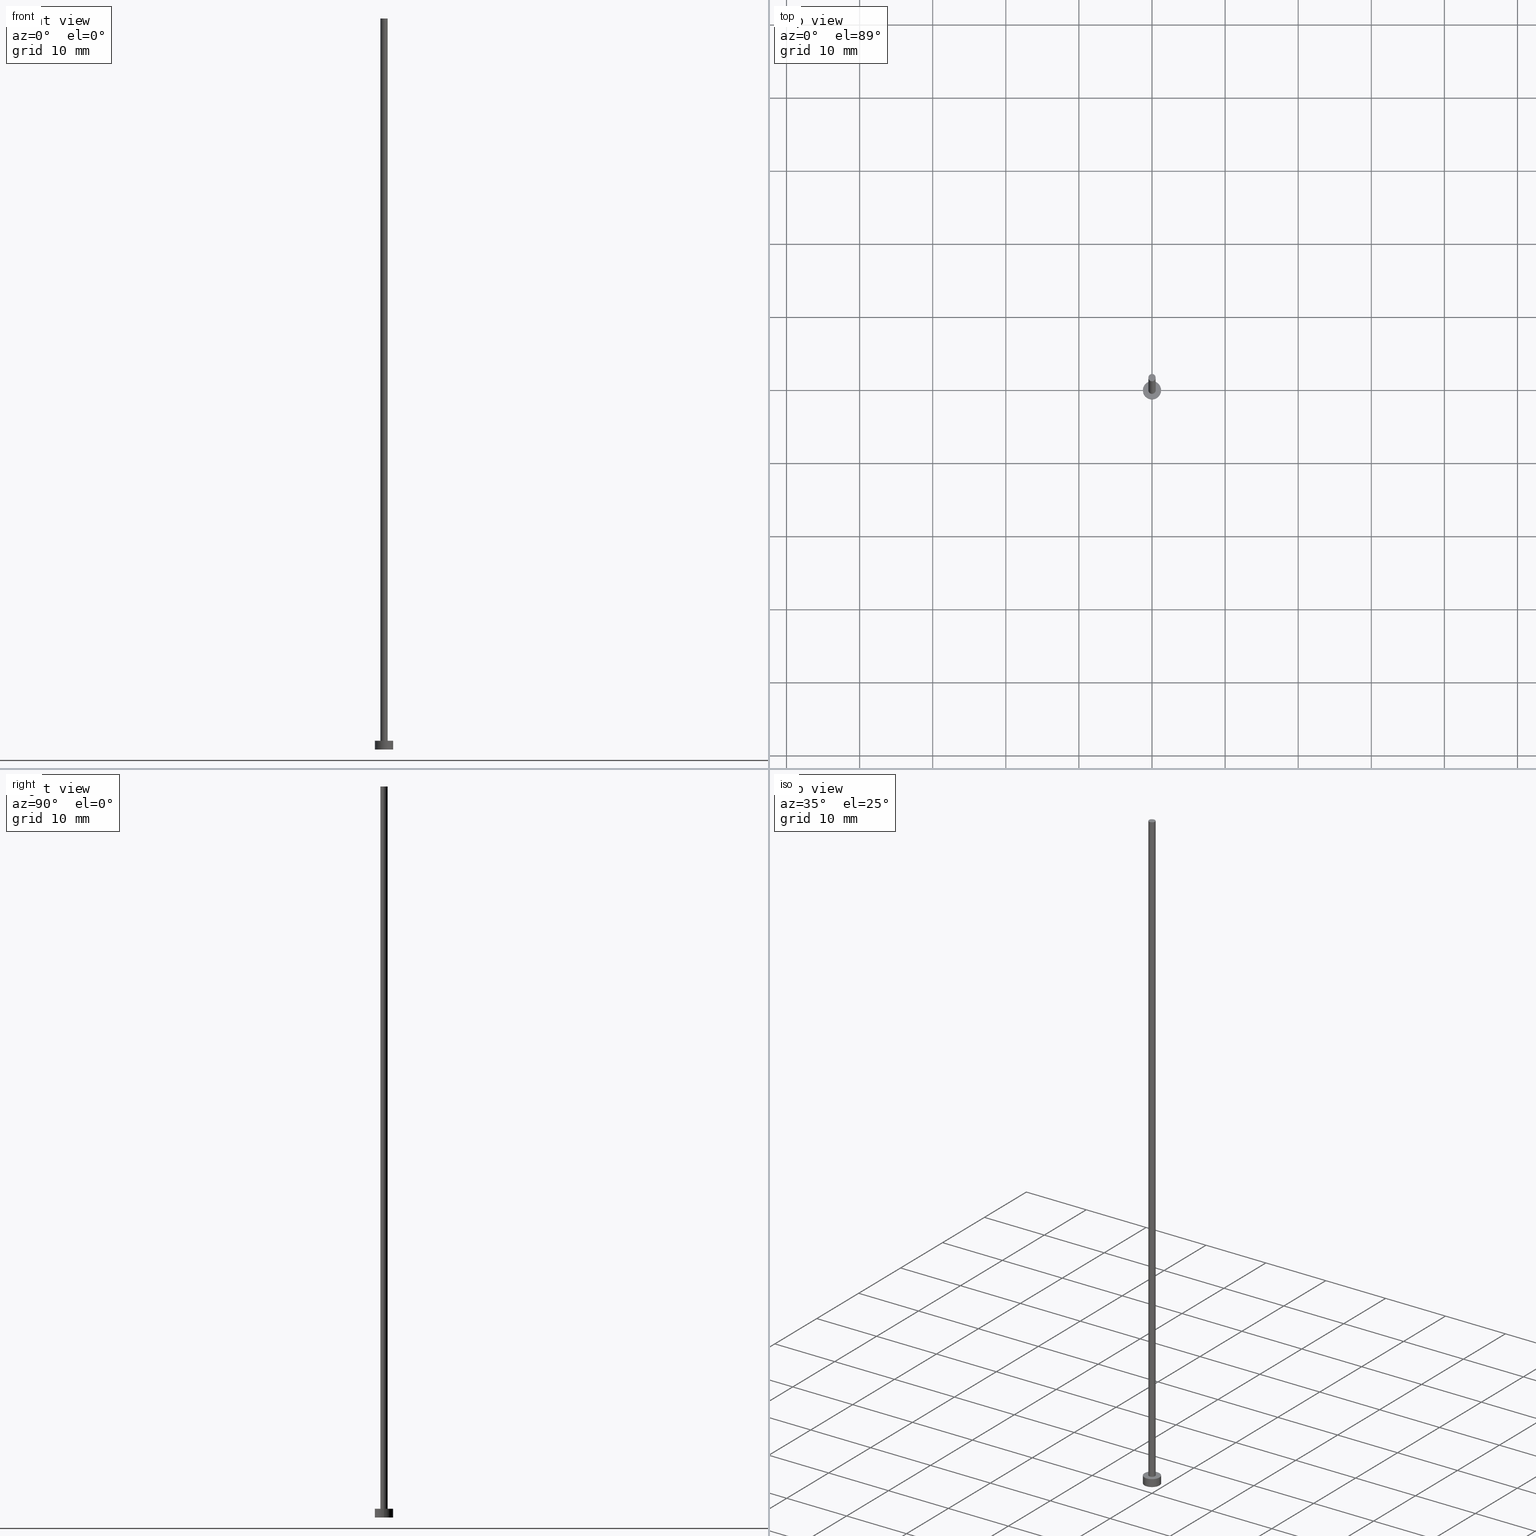
[diagram: canonical four-view strip — front | top / right | iso, engineering-drawing reading convention]
A machine part, canonical four-view strip (front | top / right | iso — engineering-drawing reading convention). The complete STEP part file that produces these views, byte-faithful:
ISO-10303-21;
HEADER;
FILE_DESCRIPTION (( 'STEP AP203' ),
    '1' );
FILE_NAME ('9a61.STEP',
    '2025-01-10T07:00:28',
    ( '' ),
    ( '' ),
    'SwSTEP 2.0',
    'SolidWorks 2019',
    '' );
FILE_SCHEMA (( 'CONFIG_CONTROL_DESIGN' ));
ENDSEC;

DATA;
#1 = EDGE_LOOP ( 'NONE', ( #94, #176, #45, #97 ) ) ;
#2 = EDGE_CURVE ( 'NONE', #156, #240, #200, .T. ) ;
#3 = VERTEX_POINT ( 'NONE', #22 ) ;
#4 = APPROVAL_DATE_TIME ( #63, #127 ) ;
#5 = EDGE_CURVE ( 'NONE', #19, #241, #30, .T. ) ;
#6 = ORIENTED_EDGE ( 'NONE', *, *, #155, .T. ) ;
#7 = CARTESIAN_POINT ( 'NONE',  ( 0.000000000000000000, 0.000000000000000000, 0.000000000000000000 ) ) ;
#8 = PLANE ( 'NONE',  #172 ) ;
#9 = AXIS2_PLACEMENT_3D ( 'NONE', #12, #166, #163 ) ;
#10 = DIRECTION ( 'NONE',  ( -1.000000000000000000, 0.000000000000000000, 0.000000000000000000 ) ) ;
#11 = CARTESIAN_POINT ( 'NONE',  ( 0.000000000000000000, 0.000000000000000000, 100.0000000000000000 ) ) ;
#12 = CARTESIAN_POINT ( 'NONE',  ( 0.000000000000000000, 0.000000000000000000, 100.0000000000000000 ) ) ;
#13 = CIRCLE ( 'NONE', #150, 0.5000000000000000000 ) ;
#14 = APPROVAL_PERSON_ORGANIZATION ( #170, #164, #193 ) ;
#15 = AXIS2_PLACEMENT_3D ( 'NONE', #165, #128, #87 ) ;
#16 = PERSON_AND_ORGANIZATION ( #28, #116 ) ;
#17 = PERSON_AND_ORGANIZATION_ROLE ( 'creator' ) ;
#18 = CARTESIAN_POINT ( 'NONE',  ( 1.250000000000000000, 1.530808498934191571E-16, 0.000000000000000000 ) ) ;
#19 = VERTEX_POINT ( 'NONE', #69 ) ;
#20 = APPROVAL ( #59, 'NEUR�EN�' ) ;
#21 = APPROVAL_ROLE ( '' ) ;
#22 = CARTESIAN_POINT ( 'NONE',  ( -0.5000000000000000000, 0.000000000000000000, 100.0000000000000000 ) ) ;
#23 = ORIENTED_EDGE ( 'NONE', *, *, #33, .T. ) ;
#24 = PRODUCT_DEFINITION ( 'NEZN�M�', '', #147, #227 ) ;
#25 = VERTEX_POINT ( 'NONE', #146 ) ;
#26 = CARTESIAN_POINT ( 'NONE',  ( 0.000000000000000000, 0.000000000000000000, 0.000000000000000000 ) ) ;
#27 = DIRECTION ( 'NONE',  ( -1.000000000000000000, 0.000000000000000000, 0.000000000000000000 ) ) ;
#28 = PERSON ( 'NEUR�EN�', 'NEUR�EN�', 'NEUR�EN�', ('NEUR�EN�'), ('NEUR�EN�'), ('NEUR�EN�') ) ;
#29 = FACE_BOUND ( 'NONE', #161, .T. ) ;
#30 = CIRCLE ( 'NONE', #86, 1.250000000000000000 ) ;
#31 = DIRECTION ( 'NONE',  ( 0.000000000000000000, 0.000000000000000000, 1.000000000000000000 ) ) ;
#32 = CARTESIAN_POINT ( 'NONE',  ( 0.000000000000000000, 0.000000000000000000, 1.199999999999999956 ) ) ;
#33 = EDGE_CURVE ( 'NONE', #25, #120, #230, .T. ) ;
#34 = SECURITY_CLASSIFICATION_LEVEL ( 'unclassified' ) ;
#35 = CIRCLE ( 'NONE', #154, 1.250000000000000000 ) ;
#36 = PERSON_AND_ORGANIZATION ( #28, #116 ) ;
#37 =( LENGTH_UNIT ( ) NAMED_UNIT ( * ) SI_UNIT ( .MILLI., .METRE. ) );
#38 = ADVANCED_FACE ( 'NONE', ( #89 ), #144, .T. ) ;
#39 = PERSON_AND_ORGANIZATION_ROLE ( 'classification_officer' ) ;
#40 = EDGE_CURVE ( 'NONE', #156, #3, #115, .T. ) ;
#41 = SHAPE_DEFINITION_REPRESENTATION ( #123, #194 ) ;
#42 = CARTESIAN_POINT ( 'NONE',  ( 0.000000000000000000, 0.000000000000000000, 0.000000000000000000 ) ) ;
#43 = DATE_AND_TIME ( #213, #77 ) ;
#44 = ORIENTED_EDGE ( 'NONE', *, *, #84, .F. ) ;
#45 = ORIENTED_EDGE ( 'NONE', *, *, #210, .T. ) ;
#46 = EDGE_CURVE ( 'NONE', #3, #156, #157, .T. ) ;
#47 = EDGE_LOOP ( 'NONE', ( #82, #48, #6, #78 ) ) ;
#48 = ORIENTED_EDGE ( 'NONE', *, *, #46, .F. ) ;
#49 = AXIS2_PLACEMENT_3D ( 'NONE', #7, #145, #162 ) ;
#50 = SECURITY_CLASSIFICATION ( '', '', #34 ) ;
#51 = CARTESIAN_POINT ( 'NONE',  ( 0.000000000000000000, 0.000000000000000000, 1.199999999999999956 ) ) ;
#52 = DIRECTION ( 'NONE',  ( 1.000000000000000000, 0.000000000000000000, -0.000000000000000000 ) ) ;
#53 = PLANE ( 'NONE',  #49 ) ;
#54 = CYLINDRICAL_SURFACE ( 'NONE', #108, 0.5000000000000000000 ) ;
#55 = DIRECTION ( 'NONE',  ( 0.000000000000000000, 0.000000000000000000, 1.000000000000000000 ) ) ;
#56 = DATE_AND_TIME ( #189, #61 ) ;
#57 = APPLICATION_CONTEXT ( 'configuration controlled 3d designs of mechanical parts and assemblies' ) ;
#58 = COORDINATED_UNIVERSAL_TIME_OFFSET ( 1, 0, .AHEAD. ) ;
#59 = APPROVAL_STATUS ( 'not_yet_approved' ) ;
#60 = AXIS2_PLACEMENT_3D ( 'NONE', #246, #223, #242 ) ;
#61 = LOCAL_TIME ( 8, 0, 28.00000000000000000, #233 ) ;
#62 = ORIENTED_EDGE ( 'NONE', *, *, #40, .T. ) ;
#63 = DATE_AND_TIME ( #96, #208 ) ;
#64 = ORIENTED_EDGE ( 'NONE', *, *, #67, .F. ) ;
#65 = DIRECTION ( 'NONE',  ( 1.000000000000000000, 0.000000000000000000, 0.000000000000000000 ) ) ;
#66 = CC_DESIGN_APPROVAL ( #20, ( #147 ) ) ;
#67 = EDGE_CURVE ( 'NONE', #240, #215, #13, .T. ) ;
#68 = FACE_OUTER_BOUND ( 'NONE', #47, .T. ) ;
#69 = CARTESIAN_POINT ( 'NONE',  ( -1.250000000000000000, 0.000000000000000000, 0.000000000000000000 ) ) ;
#70 = DIRECTION ( 'NONE',  ( 1.000000000000000000, 0.000000000000000000, 0.000000000000000000 ) ) ;
#71 = CARTESIAN_POINT ( 'NONE',  ( -1.250000000000000000, 0.000000000000000000, 1.199999999999999956 ) ) ;
#72 = APPLICATION_PROTOCOL_DEFINITION ( 'international standard', 'config_control_design', 1994, #229 ) ;
#73 = CARTESIAN_POINT ( 'NONE',  ( 0.5000000000000000000, 6.123233995736766036E-17, 1.199999999999999956 ) ) ;
#74 = CYLINDRICAL_SURFACE ( 'NONE', #142, 1.250000000000000000 ) ;
#75 = VECTOR ( 'NONE', #183, 1000.000000000000000 ) ;
#76 = AXIS2_PLACEMENT_3D ( 'NONE', #32, #106, #52 ) ;
#77 = LOCAL_TIME ( 8, 0, 28.00000000000000000, #114 ) ;
#78 = ORIENTED_EDGE ( 'NONE', *, *, #84, .T. ) ;
#79 = AXIS2_PLACEMENT_3D ( 'NONE', #101, #225, #27 ) ;
#80 = ORIENTED_EDGE ( 'NONE', *, *, #140, .T. ) ;
#81 = LOCAL_TIME ( 8, 0, 28.00000000000000000, #132 ) ;
#82 = ORIENTED_EDGE ( 'NONE', *, *, #2, .F. ) ;
#83 = DIRECTION ( 'NONE',  ( 1.000000000000000000, 0.000000000000000000, -0.000000000000000000 ) ) ;
#84 = EDGE_CURVE ( 'NONE', #215, #240, #188, .T. ) ;
#85 = FACE_OUTER_BOUND ( 'NONE', #159, .T. ) ;
#86 = AXIS2_PLACEMENT_3D ( 'NONE', #42, #178, #198 ) ;
#87 = DIRECTION ( 'NONE',  ( 1.000000000000000000, 0.000000000000000000, 0.000000000000000000 ) ) ;
#88 = DIRECTION ( 'NONE',  ( 1.000000000000000000, 0.000000000000000000, 0.000000000000000000 ) ) ;
#89 = FACE_OUTER_BOUND ( 'NONE', #1, .T. ) ;
#90 = PERSON_AND_ORGANIZATION ( #28, #116 ) ;
#91 = FACE_OUTER_BOUND ( 'NONE', #137, .T. ) ;
#92 = ADVANCED_FACE ( 'NONE', ( #181 ), #8, .T. ) ;
#93 = DIRECTION ( 'NONE',  ( -0.000000000000000000, -0.000000000000000000, -1.000000000000000000 ) ) ;
#94 = ORIENTED_EDGE ( 'NONE', *, *, #217, .F. ) ;
#95 = CC_DESIGN_APPROVAL ( #127, ( #50 ) ) ;
#96 = CALENDAR_DATE ( 2025, 10, 1 ) ;
#97 = ORIENTED_EDGE ( 'NONE', *, *, #140, .F. ) ;
#98 = CC_DESIGN_PERSON_AND_ORGANIZATION_ASSIGNMENT ( #16, #110, ( #24 ) ) ;
#99 = ORIENTED_EDGE ( 'NONE', *, *, #121, .F. ) ;
#100 = DIRECTION ( 'NONE',  ( 0.000000000000000000, 0.000000000000000000, 1.000000000000000000 ) ) ;
#101 = CARTESIAN_POINT ( 'NONE',  ( 0.000000000000000000, 0.000000000000000000, 1.199999999999999956 ) ) ;
#102 = DIRECTION ( 'NONE',  ( -0.000000000000000000, -0.000000000000000000, -1.000000000000000000 ) ) ;
#103 = APPROVAL_PERSON_ORGANIZATION ( #235, #20, #112 ) ;
#104 = ADVANCED_FACE ( 'NONE', ( #206 ), #53, .F. ) ;
#105 = CARTESIAN_POINT ( 'NONE',  ( -0.5000000000000000000, 0.000000000000000000, 100.0000000000000000 ) ) ;
#106 = DIRECTION ( 'NONE',  ( 0.000000000000000000, 0.000000000000000000, 1.000000000000000000 ) ) ;
#107 = AXIS2_PLACEMENT_3D ( 'NONE', #203, #55, #70 ) ;
#108 = AXIS2_PLACEMENT_3D ( 'NONE', #11, #186, #10 ) ;
#109 = UNCERTAINTY_MEASURE_WITH_UNIT (LENGTH_MEASURE( 1.000000000000000082E-05 ), #37, 'distance_accuracy_value', 'NONE');
#110 = PERSON_AND_ORGANIZATION_ROLE ( 'creator' ) ;
#111 = ADVANCED_FACE ( 'NONE', ( #29, #85 ), #243, .T. ) ;
#112 = APPROVAL_ROLE ( '' ) ;
#113 = APPROVAL_STATUS ( 'not_yet_approved' ) ;
#114 = COORDINATED_UNIVERSAL_TIME_OFFSET ( 1, 0, .AHEAD. ) ;
#115 = CIRCLE ( 'NONE', #9, 0.5000000000000000000 ) ;
#116 = ORGANIZATION ( 'NEUR�EN�', 'NEUR�EN�', '' ) ;
#117 = EDGE_LOOP ( 'NONE', ( #138, #179 ) ) ;
#118 = ADVANCED_FACE ( 'NONE', ( #68 ), #125, .T. ) ;
#119 = MANIFOLD_SOLID_BREP ( 'P�idat vysunut�m3', #253 ) ;
#120 = VERTEX_POINT ( 'NONE', #202 ) ;
#121 = EDGE_CURVE ( 'NONE', #120, #241, #204, .T. ) ;
#122 = EDGE_LOOP ( 'NONE', ( #218, #139, #237, #177 ) ) ;
#123 = PRODUCT_DEFINITION_SHAPE ( 'NONE', 'NONE',  #24 ) ;
#124 = CARTESIAN_POINT ( 'NONE',  ( 0.000000000000000000, 0.000000000000000000, 1.199999999999999956 ) ) ;
#125 = CYLINDRICAL_SURFACE ( 'NONE', #60, 0.5000000000000000000 ) ;
#126 = CARTESIAN_POINT ( 'NONE',  ( 1.250000000000000000, 1.530808498934191571E-16, 1.199999999999999956 ) ) ;
#127 = APPROVAL ( #136, 'NEUR�EN�' ) ;
#128 = DIRECTION ( 'NONE',  ( 0.000000000000000000, 0.000000000000000000, 1.000000000000000000 ) ) ;
#129 = APPROVAL_DATE_TIME ( #211, #20 ) ;
#130 = PERSON_AND_ORGANIZATION_ROLE ( 'design_owner' ) ;
#131 = CARTESIAN_POINT ( 'NONE',  ( 0.000000000000000000, 0.000000000000000000, 1.199999999999999956 ) ) ;
#132 = COORDINATED_UNIVERSAL_TIME_OFFSET ( 1, 0, .AHEAD. ) ;
#133 = VECTOR ( 'NONE', #102, 1000.000000000000000 ) ;
#134 = CC_DESIGN_APPROVAL ( #164, ( #24 ) ) ;
#135 = CARTESIAN_POINT ( 'NONE',  ( 0.5000000000000000000, 6.123233995736766036E-17, 100.0000000000000000 ) ) ;
#136 = APPROVAL_STATUS ( 'not_yet_approved' ) ;
#137 = EDGE_LOOP ( 'NONE', ( #99, #201, #80, #216 ) ) ;
#138 = ORIENTED_EDGE ( 'NONE', *, *, #5, .F. ) ;
#139 = ORIENTED_EDGE ( 'NONE', *, *, #2, .T. ) ;
#140 = EDGE_CURVE ( 'NONE', #25, #19, #205, .T. ) ;
#141 = EDGE_LOOP ( 'NONE', ( #175, #62 ) ) ;
#142 = AXIS2_PLACEMENT_3D ( 'NONE', #131, #93, #171 ) ;
#143 = CARTESIAN_POINT ( 'NONE',  ( -0.5000000000000000000, 0.000000000000000000, 1.199999999999999956 ) ) ;
#144 = CYLINDRICAL_SURFACE ( 'NONE', #79, 1.250000000000000000 ) ;
#145 = DIRECTION ( 'NONE',  ( 0.000000000000000000, 0.000000000000000000, 1.000000000000000000 ) ) ;
#146 = CARTESIAN_POINT ( 'NONE',  ( -1.250000000000000000, 0.000000000000000000, 1.199999999999999956 ) ) ;
#147 = PRODUCT_DEFINITION_FORMATION_WITH_SPECIFIED_SOURCE ( 'LIBOVOLN�', '', #196, .NOT_KNOWN. ) ;
#148 = DIRECTION ( 'NONE',  ( -0.000000000000000000, -0.000000000000000000, -1.000000000000000000 ) ) ;
#149 = DATE_TIME_ROLE ( 'creation_date' ) ;
#150 = AXIS2_PLACEMENT_3D ( 'NONE', #180, #31, #88 ) ;
#151 = APPROVAL_DATE_TIME ( #56, #164 ) ;
#152 = PERSON_AND_ORGANIZATION ( #28, #116 ) ;
#153 = MECHANICAL_CONTEXT ( 'NONE', #229, 'mechanical' ) ;
#154 = AXIS2_PLACEMENT_3D ( 'NONE', #26, #100, #65 ) ;
#155 = EDGE_CURVE ( 'NONE', #3, #215, #224, .T. ) ;
#156 = VERTEX_POINT ( 'NONE', #184 ) ;
#157 = CIRCLE ( 'NONE', #107, 0.5000000000000000000 ) ;
#158 = AXIS2_PLACEMENT_3D ( 'NONE', #234, #226, #252 ) ;
#159 = EDGE_LOOP ( 'NONE', ( #23, #238 ) ) ;
#160 = PERSON_AND_ORGANIZATION ( #28, #116 ) ;
#161 = EDGE_LOOP ( 'NONE', ( #44, #64 ) ) ;
#162 = DIRECTION ( 'NONE',  ( 1.000000000000000000, 0.000000000000000000, -0.000000000000000000 ) ) ;
#163 = DIRECTION ( 'NONE',  ( 1.000000000000000000, 0.000000000000000000, 0.000000000000000000 ) ) ;
#164 = APPROVAL ( #113, 'NEUR�EN�' ) ;
#165 = CARTESIAN_POINT ( 'NONE',  ( 0.000000000000000000, 0.000000000000000000, 1.199999999999999956 ) ) ;
#166 = DIRECTION ( 'NONE',  ( 0.000000000000000000, 0.000000000000000000, 1.000000000000000000 ) ) ;
#167 = CARTESIAN_POINT ( 'NONE',  ( 0.000000000000000000, 0.000000000000000000, 100.0000000000000000 ) ) ;
#168 = CC_DESIGN_PERSON_AND_ORGANIZATION_ASSIGNMENT ( #90, #251, ( #147 ) ) ;
#169 = DIRECTION ( 'NONE',  ( 1.000000000000000000, 0.000000000000000000, 0.000000000000000000 ) ) ;
#170 = PERSON_AND_ORGANIZATION ( #28, #116 ) ;
#171 = DIRECTION ( 'NONE',  ( -1.000000000000000000, 0.000000000000000000, 0.000000000000000000 ) ) ;
#172 = AXIS2_PLACEMENT_3D ( 'NONE', #167, #244, #83 ) ;
#173 = CC_DESIGN_PERSON_AND_ORGANIZATION_ASSIGNMENT ( #174, #17, ( #147 ) ) ;
#174 = PERSON_AND_ORGANIZATION ( #28, #116 ) ;
#175 = ORIENTED_EDGE ( 'NONE', *, *, #46, .T. ) ;
#176 = ORIENTED_EDGE ( 'NONE', *, *, #121, .T. ) ;
#177 = ORIENTED_EDGE ( 'NONE', *, *, #155, .F. ) ;
#178 = DIRECTION ( 'NONE',  ( 0.000000000000000000, 0.000000000000000000, 1.000000000000000000 ) ) ;
#179 = ORIENTED_EDGE ( 'NONE', *, *, #210, .F. ) ;
#180 = CARTESIAN_POINT ( 'NONE',  ( 0.000000000000000000, 0.000000000000000000, 1.199999999999999956 ) ) ;
#181 = FACE_OUTER_BOUND ( 'NONE', #141, .T. ) ;
#182 = CC_DESIGN_DATE_AND_TIME_ASSIGNMENT ( #43, #214, ( #50 ) ) ;
#183 = DIRECTION ( 'NONE',  ( -0.000000000000000000, -0.000000000000000000, -1.000000000000000000 ) ) ;
#184 = CARTESIAN_POINT ( 'NONE',  ( 0.5000000000000000000, 6.123233995736766036E-17, 100.0000000000000000 ) ) ;
#185 = ADVANCED_FACE ( 'NONE', ( #245 ), #54, .T. ) ;
#186 = DIRECTION ( 'NONE',  ( -0.000000000000000000, -0.000000000000000000, -1.000000000000000000 ) ) ;
#187 = VECTOR ( 'NONE', #148, 1000.000000000000000 ) ;
#188 = CIRCLE ( 'NONE', #249, 0.5000000000000000000 ) ;
#189 = CALENDAR_DATE ( 2025, 10, 1 ) ;
#190 = APPROVAL_PERSON_ORGANIZATION ( #160, #127, #21 ) ;
#191 = CALENDAR_DATE ( 2025, 10, 1 ) ;
#192 = CC_DESIGN_PERSON_AND_ORGANIZATION_ASSIGNMENT ( #36, #130, ( #196 ) ) ;
#193 = APPROVAL_ROLE ( '' ) ;
#194 = ADVANCED_BREP_SHAPE_REPRESENTATION ( '9a61', ( #119, #158 ), #250 ) ;
#195 =( NAMED_UNIT ( * ) SI_UNIT ( $, .STERADIAN. ) SOLID_ANGLE_UNIT ( ) );
#196 = PRODUCT ( '9a61', '9a61', '', ( #153 ) ) ;
#197 = COORDINATED_UNIVERSAL_TIME_OFFSET ( 1, 0, .AHEAD. ) ;
#198 = DIRECTION ( 'NONE',  ( 1.000000000000000000, 0.000000000000000000, 0.000000000000000000 ) ) ;
#199 = VECTOR ( 'NONE', #254, 1000.000000000000000 ) ;
#200 = LINE ( 'NONE', #135, #199 ) ;
#201 = ORIENTED_EDGE ( 'NONE', *, *, #33, .F. ) ;
#202 = CARTESIAN_POINT ( 'NONE',  ( 1.250000000000000000, 1.530808498934191571E-16, 1.199999999999999956 ) ) ;
#203 = CARTESIAN_POINT ( 'NONE',  ( 0.000000000000000000, 0.000000000000000000, 100.0000000000000000 ) ) ;
#204 = LINE ( 'NONE', #126, #133 ) ;
#205 = LINE ( 'NONE', #71, #187 ) ;
#206 = FACE_OUTER_BOUND ( 'NONE', #117, .T. ) ;
#207 = APPLICATION_PROTOCOL_DEFINITION ( 'international standard', 'config_control_design', 1994, #57 ) ;
#208 = LOCAL_TIME ( 8, 0, 28.00000000000000000, #197 ) ;
#209 = CALENDAR_DATE ( 2025, 10, 1 ) ;
#210 = EDGE_CURVE ( 'NONE', #241, #19, #35, .T. ) ;
#211 = DATE_AND_TIME ( #209, #81 ) ;
#212 = CC_DESIGN_DATE_AND_TIME_ASSIGNMENT ( #248, #149, ( #24 ) ) ;
#213 = CALENDAR_DATE ( 2025, 10, 1 ) ;
#214 = DATE_TIME_ROLE ( 'classification_date' ) ;
#215 = VERTEX_POINT ( 'NONE', #143 ) ;
#216 = ORIENTED_EDGE ( 'NONE', *, *, #5, .T. ) ;
#217 = EDGE_CURVE ( 'NONE', #120, #25, #236, .T. ) ;
#218 = ORIENTED_EDGE ( 'NONE', *, *, #40, .F. ) ;
#219 = PRODUCT_RELATED_PRODUCT_CATEGORY ( 'detail', '', ( #196 ) ) ;
#220 = CC_DESIGN_SECURITY_CLASSIFICATION ( #50, ( #147 ) ) ;
#221 = DIRECTION ( 'NONE',  ( 0.000000000000000000, 0.000000000000000000, 1.000000000000000000 ) ) ;
#222 = DIRECTION ( 'NONE',  ( 1.000000000000000000, 0.000000000000000000, 0.000000000000000000 ) ) ;
#223 = DIRECTION ( 'NONE',  ( -0.000000000000000000, -0.000000000000000000, -1.000000000000000000 ) ) ;
#224 = LINE ( 'NONE', #105, #75 ) ;
#225 = DIRECTION ( 'NONE',  ( -0.000000000000000000, -0.000000000000000000, -1.000000000000000000 ) ) ;
#226 = DIRECTION ( 'NONE',  ( 0.000000000000000000, 0.000000000000000000, 1.000000000000000000 ) ) ;
#227 = DESIGN_CONTEXT ( 'detailed design', #57, 'design' ) ;
#228 = CC_DESIGN_PERSON_AND_ORGANIZATION_ASSIGNMENT ( #152, #39, ( #50 ) ) ;
#229 = APPLICATION_CONTEXT ( 'configuration controlled 3d designs of mechanical parts and assemblies' ) ;
#230 = CIRCLE ( 'NONE', #15, 1.250000000000000000 ) ;
#231 = DIRECTION ( 'NONE',  ( 0.000000000000000000, 0.000000000000000000, 1.000000000000000000 ) ) ;
#232 = AXIS2_PLACEMENT_3D ( 'NONE', #51, #231, #169 ) ;
#233 = COORDINATED_UNIVERSAL_TIME_OFFSET ( 1, 0, .AHEAD. ) ;
#234 = CARTESIAN_POINT ( 'NONE',  ( 0.000000000000000000, 0.000000000000000000, 0.000000000000000000 ) ) ;
#235 = PERSON_AND_ORGANIZATION ( #28, #116 ) ;
#236 = CIRCLE ( 'NONE', #232, 1.250000000000000000 ) ;
#237 = ORIENTED_EDGE ( 'NONE', *, *, #67, .T. ) ;
#238 = ORIENTED_EDGE ( 'NONE', *, *, #217, .T. ) ;
#239 = ADVANCED_FACE ( 'NONE', ( #91 ), #74, .T. ) ;
#240 = VERTEX_POINT ( 'NONE', #73 ) ;
#241 = VERTEX_POINT ( 'NONE', #18 ) ;
#242 = DIRECTION ( 'NONE',  ( -1.000000000000000000, 0.000000000000000000, 0.000000000000000000 ) ) ;
#243 = PLANE ( 'NONE',  #76 ) ;
#244 = DIRECTION ( 'NONE',  ( 0.000000000000000000, 0.000000000000000000, 1.000000000000000000 ) ) ;
#245 = FACE_OUTER_BOUND ( 'NONE', #122, .T. ) ;
#246 = CARTESIAN_POINT ( 'NONE',  ( 0.000000000000000000, 0.000000000000000000, 100.0000000000000000 ) ) ;
#247 =( NAMED_UNIT ( * ) PLANE_ANGLE_UNIT ( ) SI_UNIT ( $, .RADIAN. ) );
#248 = DATE_AND_TIME ( #191, #255 ) ;
#249 = AXIS2_PLACEMENT_3D ( 'NONE', #124, #221, #222 ) ;
#250 =( GEOMETRIC_REPRESENTATION_CONTEXT ( 3 ) GLOBAL_UNCERTAINTY_ASSIGNED_CONTEXT ( ( #109 ) ) GLOBAL_UNIT_ASSIGNED_CONTEXT ( ( #37, #247, #195 ) ) REPRESENTATION_CONTEXT ( 'NONE', 'WORKASPACE' ) );
#251 = PERSON_AND_ORGANIZATION_ROLE ( 'design_supplier' ) ;
#252 = DIRECTION ( 'NONE',  ( 1.000000000000000000, 0.000000000000000000, 0.000000000000000000 ) ) ;
#253 = CLOSED_SHELL ( 'NONE', ( #185, #38, #239, #111, #104, #118, #92 ) ) ;
#254 = DIRECTION ( 'NONE',  ( -0.000000000000000000, -0.000000000000000000, -1.000000000000000000 ) ) ;
#255 = LOCAL_TIME ( 8, 0, 28.00000000000000000, #58 ) ;
ENDSEC;
END-ISO-10303-21;
